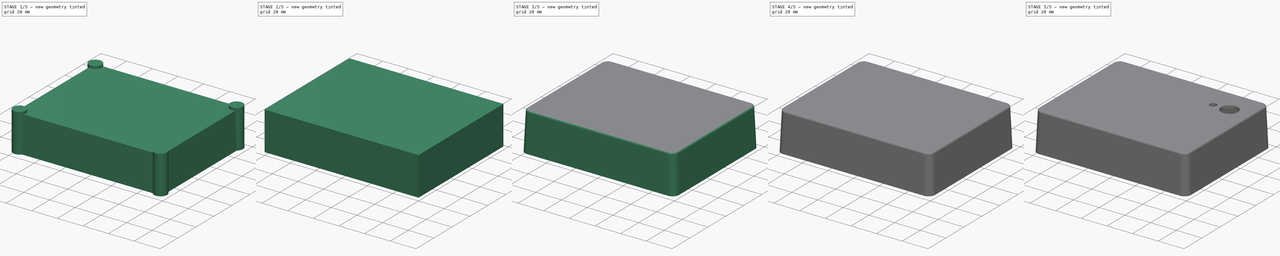
[diagram: build sequence overview — one tinted view per stage of 5, left to right]
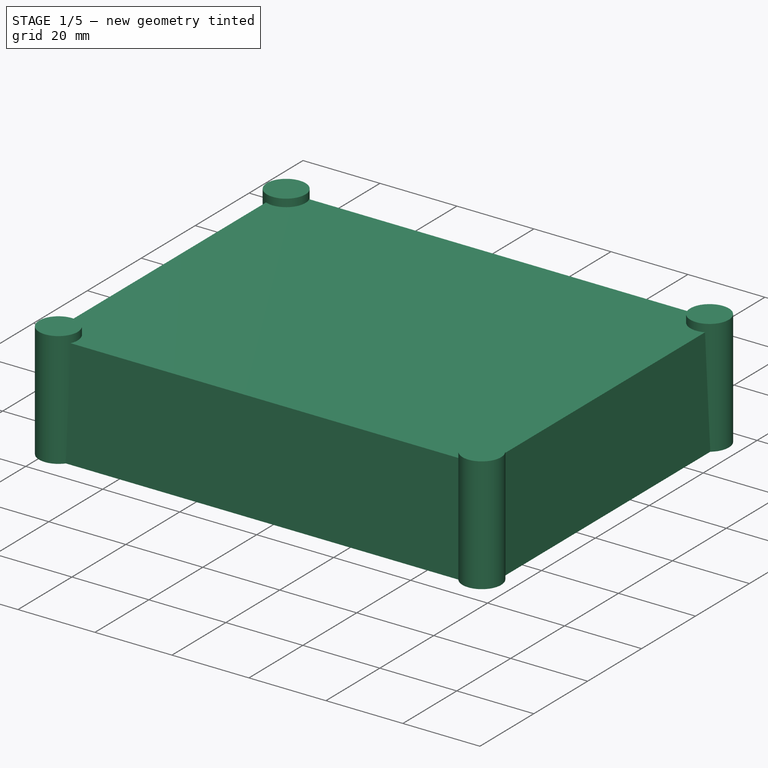
[diagram: stage 1 of 5 — iso view after this stage's code; geometry added in this stage tinted green]
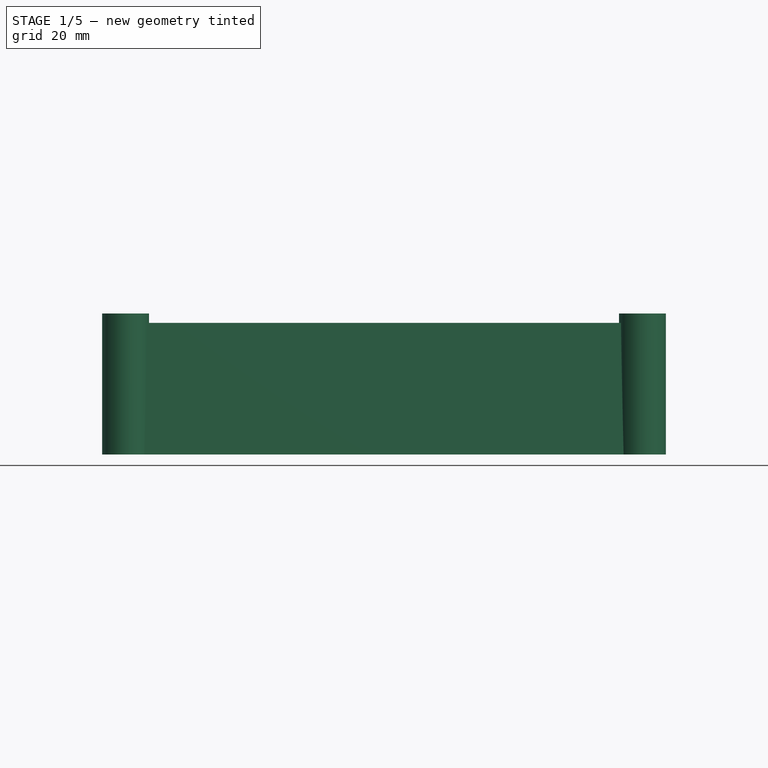
[diagram: stage 1 of 5 — front view after this stage's code; geometry added in this stage tinted green]
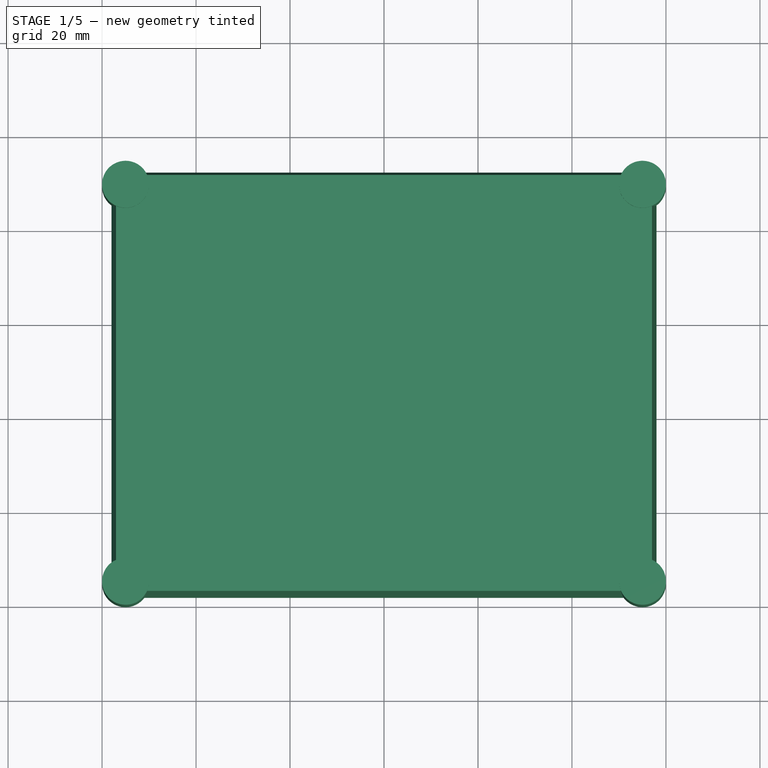
[diagram: stage 1 of 5 — top view after this stage's code; geometry added in this stage tinted green]
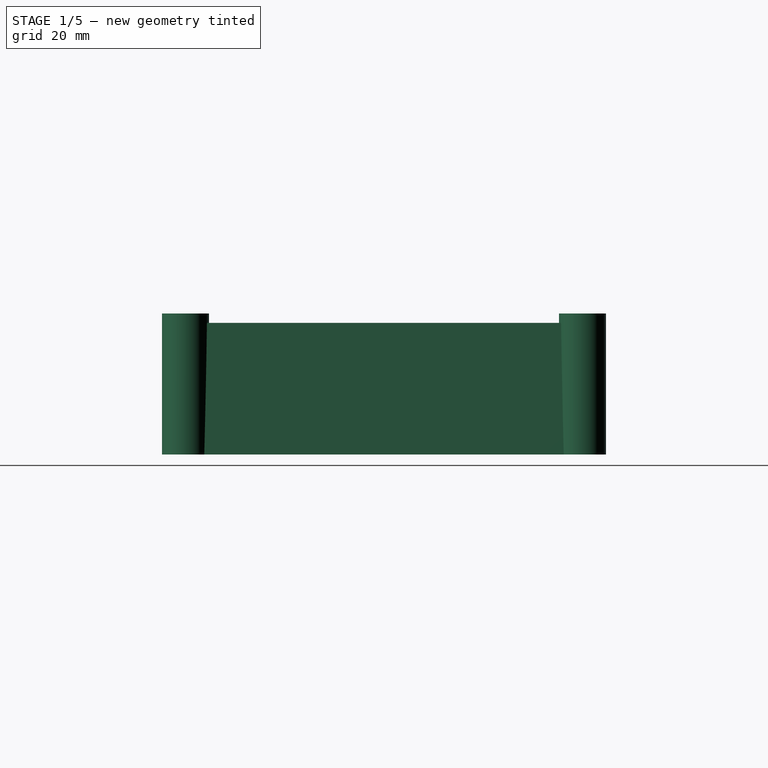
[diagram: stage 1 of 5 — right view after this stage's code; geometry added in this stage tinted green]
FCSTD DOCUMENT  (FreeCAD 0.15R4671 (Git))
Label: CaseWCutoutsModel
License: All rights reserved
LicenseURL: http://en.wikipedia.org/wiki/All_rights_reserved
objects: Sketcher::SketchObject×6, Part::Extrusion×6, Part::Cut×5, PartDesign::Fillet×4, PartDesign::Draft×2
note: 23 computed .brp shape members not serialized (recipe doc carries the construction recipe); baked Part::Feature solids carry a one-line shape summary decoded from their .brp

FEATURE [Part::Extrusion] Extrude001
  Base = -> Sketch005
  Dir = (0,0,28)
  Solid = true
FEATURE [PartDesign::Draft] Draft001
  Angle = 2
  Base = -> Extrude001 [Face1,Face4,Face3,Face2]
  NeutralPlane = -> Extrude001 [Face5]
FEATURE [Sketcher::SketchObject] Sketch007  label="screws"
  sketch-geometry (4):
    g0: Circle CenterX=5 CenterY=89.5 CenterZ=0 NormalX=0 NormalY=0 NormalZ=1 Radius=5
    g1: Circle CenterX=115 CenterY=89.5 CenterZ=0 NormalX=0 NormalY=0 NormalZ=1 Radius=5
    g2: Circle CenterX=5 CenterY=5 CenterZ=0 NormalX=0 NormalY=0 NormalZ=1 Radius=5
    g3: Circle CenterX=115 CenterY=5 CenterZ=0 NormalX=0 NormalY=0 NormalZ=1 Radius=5
  constraints (12):
    c: Radius(g0) = 5
    c: Radius(g1) = 5
    c: Radius(g2) = 5
    c: Radius(g3) = 5
    c: DistanceX(g-1,g2) = 5
    c: DistanceY(g-1,g2) = 5
    c: DistanceY(g-1,g0) = 89.5
    c: DistanceX(g-1,g0) = 5
    c: DistanceY(g-1,g1) = 89.5
    c: DistanceX(g-1,g3) = 115
    c: DistanceY(g-1,g3) = 5
    c: DistanceX(g-1,g1) = 115
FEATURE [Part::Extrusion] Extrude005  label="screwextrude"
  Base = -> Sketch007
  Dir = (0,0,30)
  Solid = true
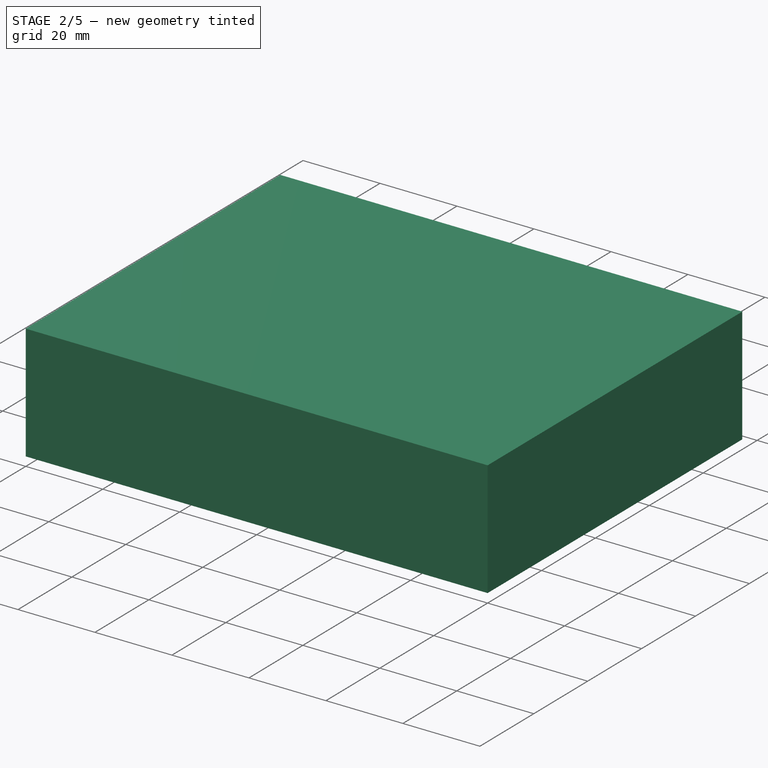
[diagram: stage 2 of 5 — iso view after this stage's code; geometry added in this stage tinted green]
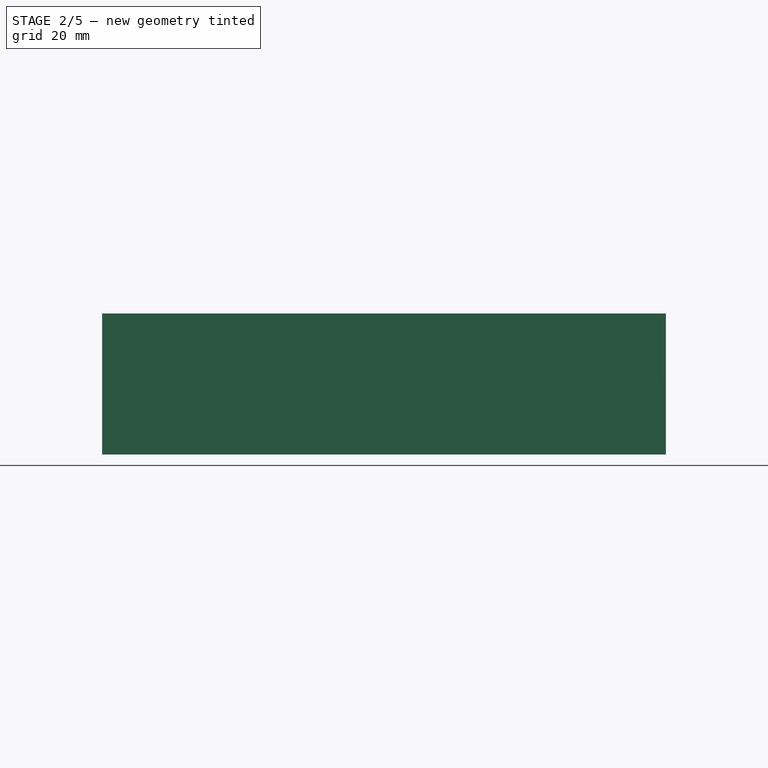
[diagram: stage 2 of 5 — front view after this stage's code; geometry added in this stage tinted green]
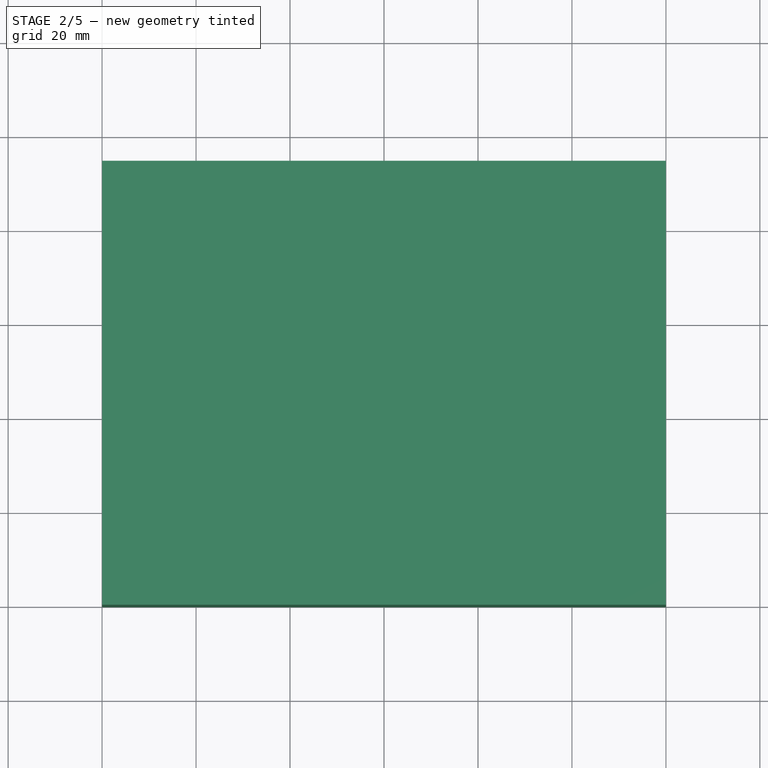
[diagram: stage 2 of 5 — top view after this stage's code; geometry added in this stage tinted green]
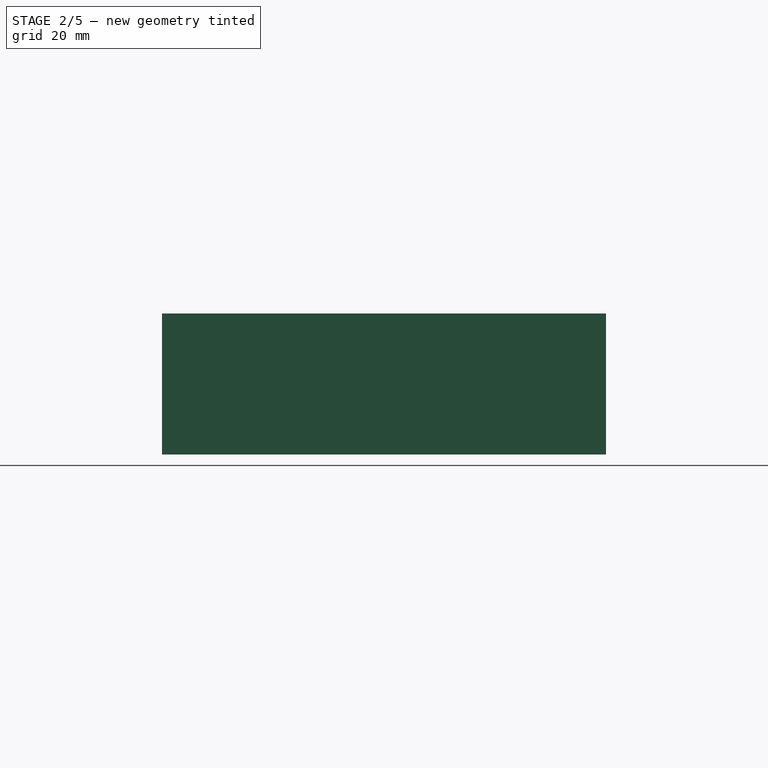
[diagram: stage 2 of 5 — right view after this stage's code; geometry added in this stage tinted green]
FEATURE [Sketcher::SketchObject] Sketch
  sketch-geometry (4):
    g0: LineSegment StartX=0 StartY=0 StartZ=0 EndX=120 EndY=0 EndZ=0
    g1: LineSegment StartX=120 StartY=0 StartZ=0 EndX=120 EndY=94.5 EndZ=0
    g2: LineSegment StartX=120 StartY=94.5 StartZ=0 EndX=0 EndY=94.5 EndZ=0
    g3: LineSegment StartX=0 StartY=94.5 StartZ=0 EndX=0 EndY=0 EndZ=0
  constraints (11):
    c: Coincident(g0,g1)
    c: Coincident(g1,g2)
    c: Coincident(g2,g3)
    c: Coincident(g3,g0)
    c: Horizontal(g0)
    c: Horizontal(g2)
    c: Vertical(g1)
    c: Vertical(g3)
    c: DistanceX(g0) = 120
    c: Coincident(g0,g-1)
    c: DistanceY(g3) = -94.5
FEATURE [Sketcher::SketchObject] Sketch002  label="end_nobox"
  Placement = pos=(0,47.25,0) rot=(0.57735,-0.57735,-0.57735;2.0944rad)
  sketch-geometry (4):
    g0: Circle CenterX=26.035 CenterY=12 CenterZ=0 NormalX=0 NormalY=0 NormalZ=1 Radius=6
    g1: Circle CenterX=-26.035 CenterY=12 CenterZ=0 NormalX=0 NormalY=0 NormalZ=1 Radius=6
    g2: Circle CenterX=-9.525 CenterY=11.25 CenterZ=0 NormalX=0 NormalY=0 NormalZ=1 Radius=5
    g3: Circle CenterX=0 CenterY=20 CenterZ=0 NormalX=0 NormalY=0 NormalZ=1 Radius=1.65
  constraints (12):
    c: DistanceX(g-1,g0) = 26.035
    c: Radius(g0) = 6
    c: DistanceX(g-1,g1) = -26.035
    c: Radius(g2) = 5
    c: DistanceX(g-1,g2) = -9.525
    c: DistanceY(g-1,g0) = 12
    c: DistanceY(g-1,g2) = 11.25
    c: DistanceY(g-1,g1) = 12
    c: Radius(g1) = 6
    c: Radius(g3) = 1.65
    c: DistanceX(g-1,g3) = 0
    c: DistanceY(g-1,g3) = 20
FEATURE [Sketcher::SketchObject] Sketch004  label="top_nobox"
  Placement = pos=(60,47.25,30) rot=(0,0,1;1.5708rad)
  sketch-geometry (2):
    g0: Circle CenterX=24.765 CenterY=-43.053 CenterZ=0 NormalX=0 NormalY=0 NormalZ=1 Radius=6.5
    g1: Circle CenterX=24.765 CenterY=-30.353 CenterZ=0 NormalX=0 NormalY=0 NormalZ=1 Radius=2.625
  constraints (6):
    c: DistanceX(g-1,g0) = 24.765
    c: Radius(g0) = 6.5
    c: Radius(g1) = 2.625
    c: DistanceX(g-1,g1) = 24.765
    c: DistanceY(g-1,g1) = -30.353
    c: DistanceY(g-1,g0) = -43.053
FEATURE [Sketcher::SketchObject] Sketch005
  sketch-geometry (4):
    g0: LineSegment StartX=2 StartY=92.5 StartZ=0 EndX=118 EndY=92.5 EndZ=0
    g1: LineSegment StartX=118 StartY=92.5 StartZ=0 EndX=118 EndY=2 EndZ=0
    g2: LineSegment StartX=118 StartY=2 StartZ=0 EndX=2 EndY=2 EndZ=0
    g3: LineSegment StartX=2 StartY=2 StartZ=0 EndX=2 EndY=92.5 EndZ=0
  constraints (12):
    c: Coincident(g0,g1)
    c: Coincident(g1,g2)
    c: Coincident(g2,g3)
    c: Coincident(g3,g0)
    c: Horizontal(g0)
    c: Horizontal(g2)
    c: Vertical(g1)
    c: Vertical(g3)
    c: DistanceX(g0) = 116
    c: DistanceY(g3) = 90.5
    c: DistanceY(g-1,g2) = 2
    c: DistanceX(g-1,g2) = 2
FEATURE [Part::Extrusion] Extrude
  Base = -> Sketch
  Dir = (0,0,30)
  Solid = true
FEATURE [PartDesign::Fillet] Fillet002
  Base = -> Draft001 [Edge8,Edge5,Edge2,Edge1]
  Radius = 5
FEATURE [PartDesign::Fillet] Fillet003  label="InnerShell"
  Base = -> Fillet002 [Edge13,Edge4,Edge16,Edge18,Edge20,Edge19,Edge17,Edge15]
  Radius = 1.5
FEATURE [Part::Cut] Cut  label="inner"
  Base = -> Fillet003
  Tool = -> Extrude005
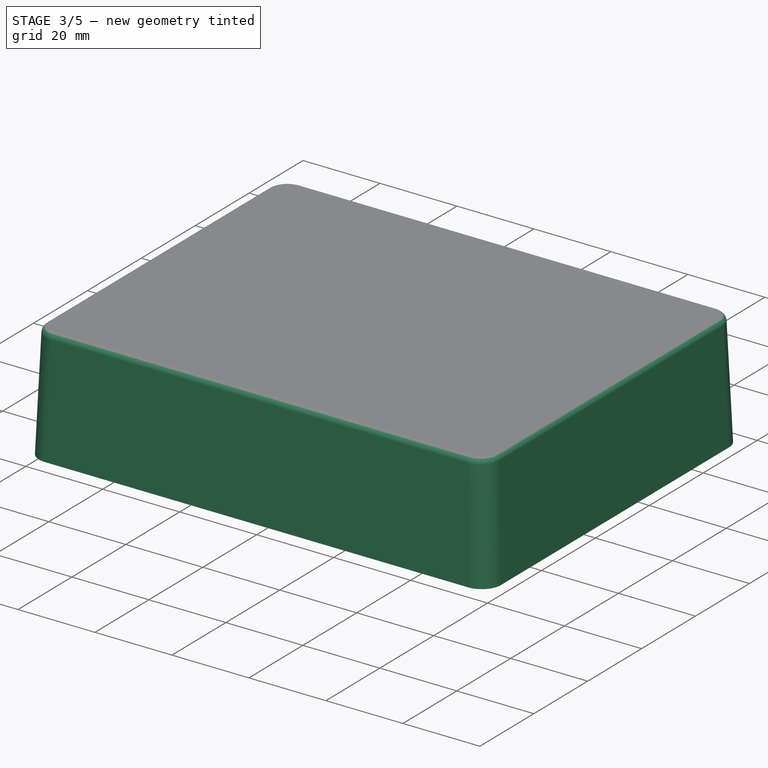
[diagram: stage 3 of 5 — iso view after this stage's code; geometry added in this stage tinted green]
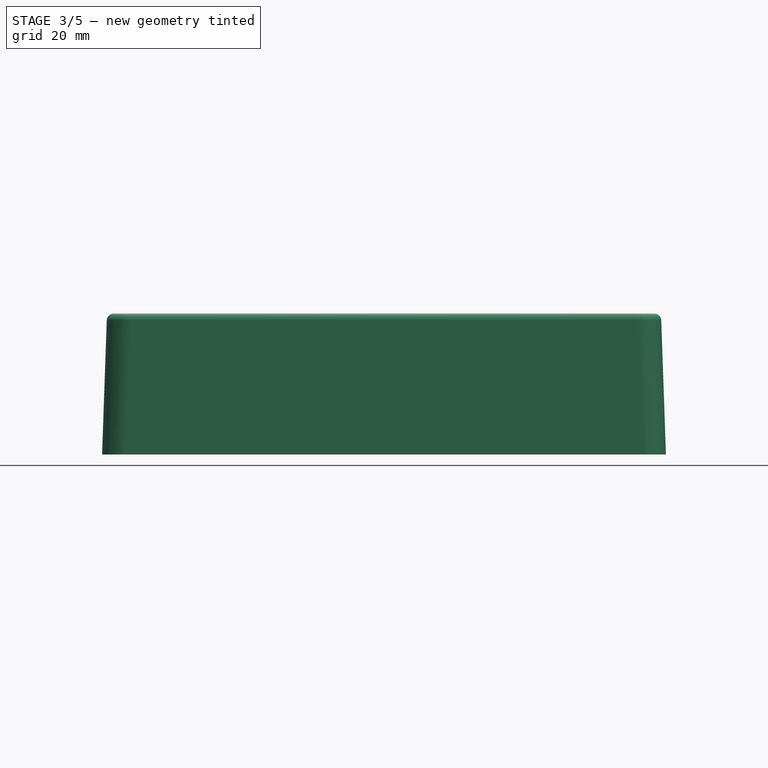
[diagram: stage 3 of 5 — front view after this stage's code; geometry added in this stage tinted green]
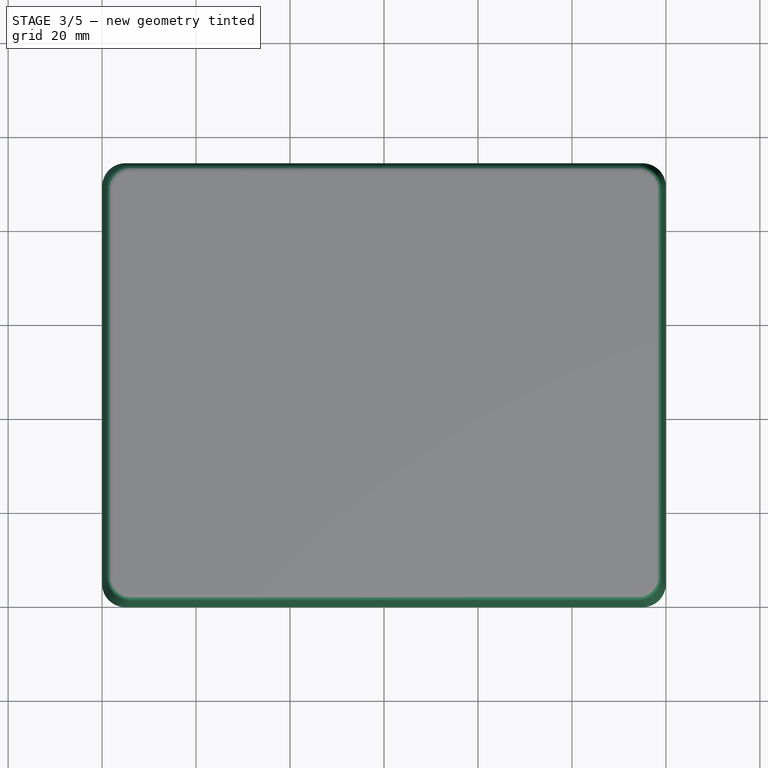
[diagram: stage 3 of 5 — top view after this stage's code; geometry added in this stage tinted green]
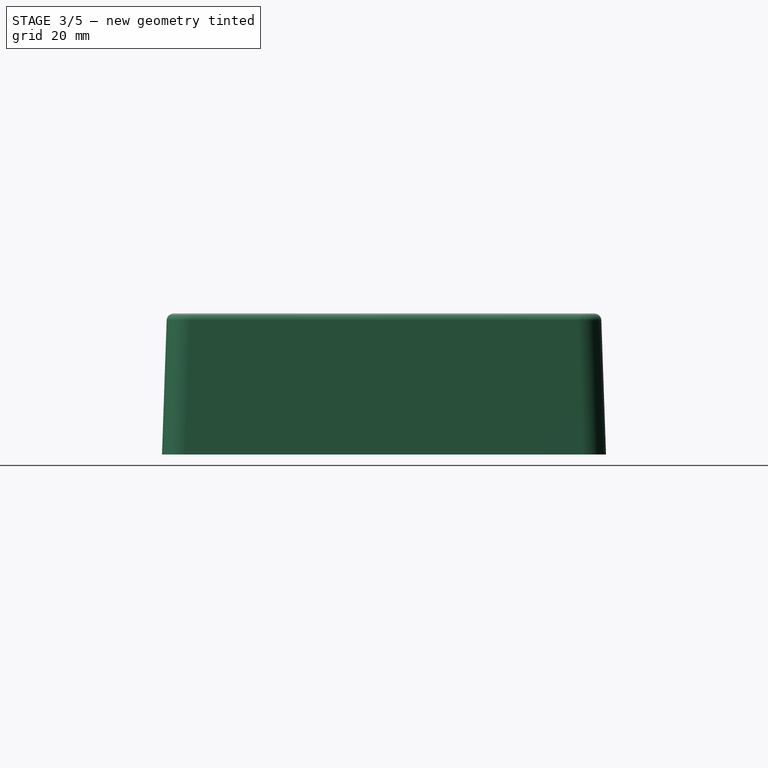
[diagram: stage 3 of 5 — right view after this stage's code; geometry added in this stage tinted green]
FEATURE [PartDesign::Draft] Draft
  Angle = 2
  Base = -> Extrude [Face2,Face3,Face1,Face4]
  NeutralPlane = -> Extrude [Face5]
  Reversed = true
FEATURE [PartDesign::Fillet] Fillet
  Base = -> Draft [Edge1,Edge2,Edge5,Edge8]
  Radius = 5
FEATURE [PartDesign::Fillet] Fillet001  label="OuterShell"
  Base = -> Fillet [Edge18,Edge20,Edge16,Edge13,Edge4,Edge15,Edge17,Edge19]
  Radius = 1.5
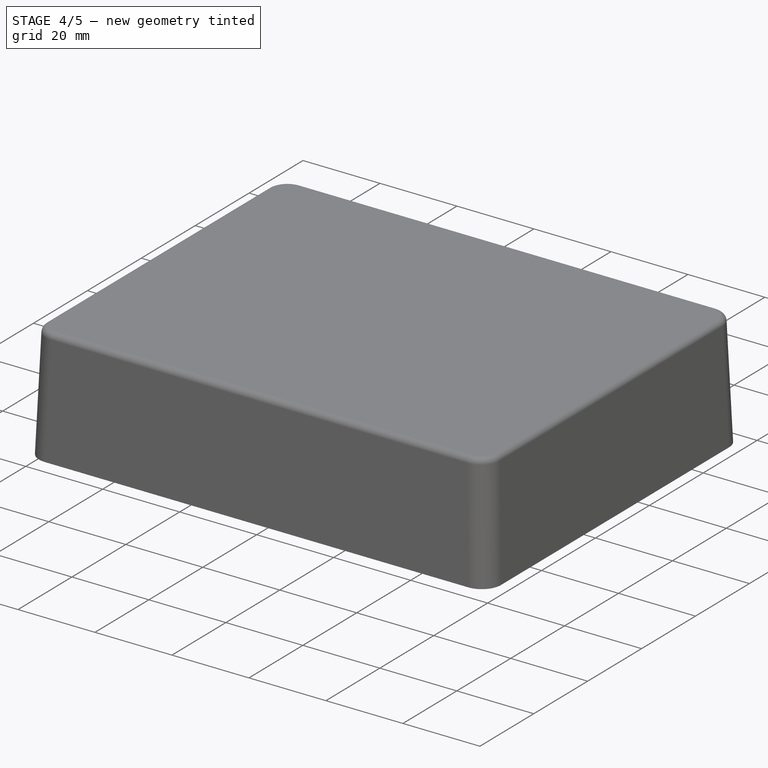
[diagram: stage 4 of 5 — iso view after this stage's code; geometry added in this stage tinted green]
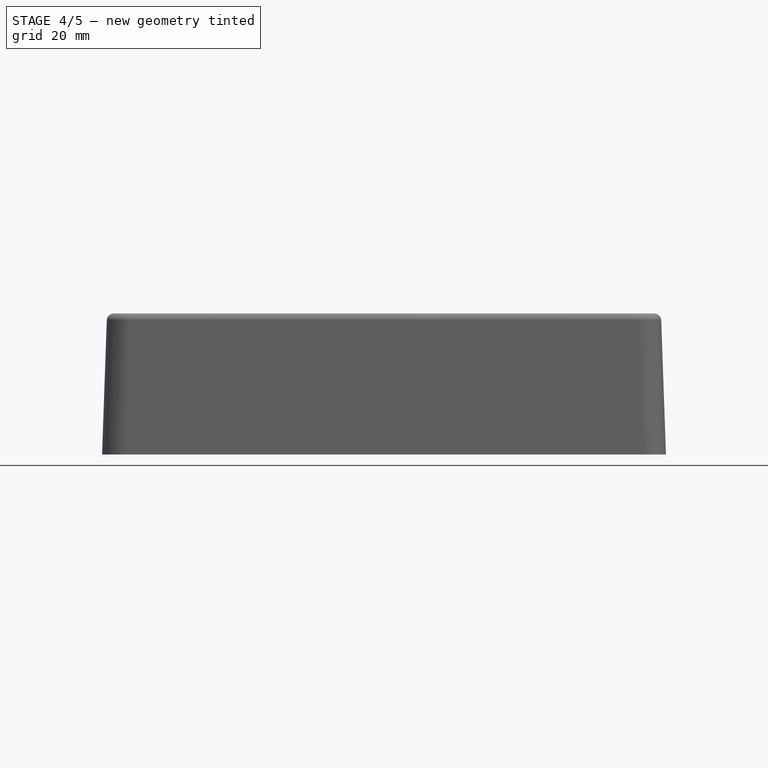
[diagram: stage 4 of 5 — front view after this stage's code; geometry added in this stage tinted green]
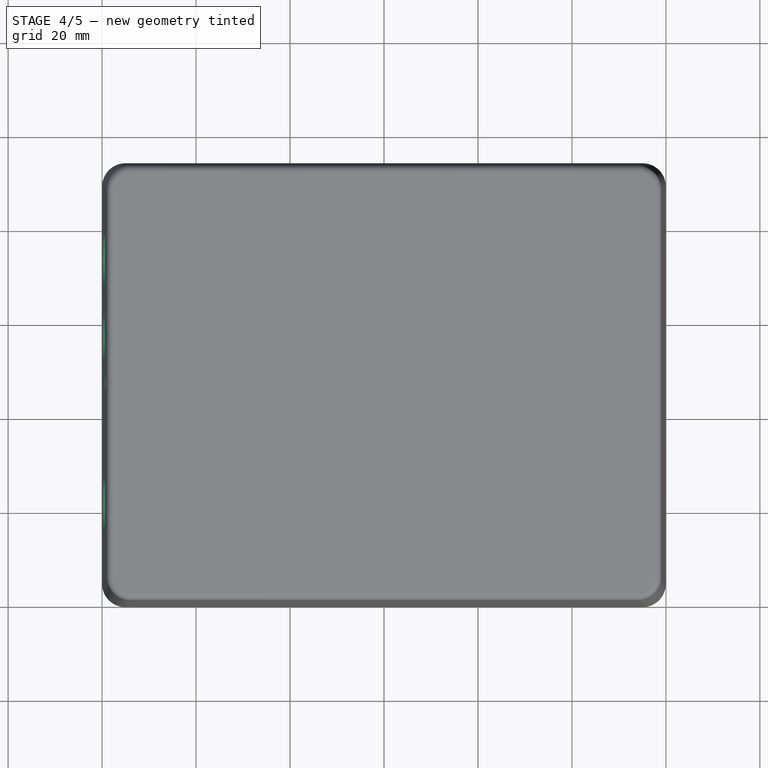
[diagram: stage 4 of 5 — top view after this stage's code; geometry added in this stage tinted green]
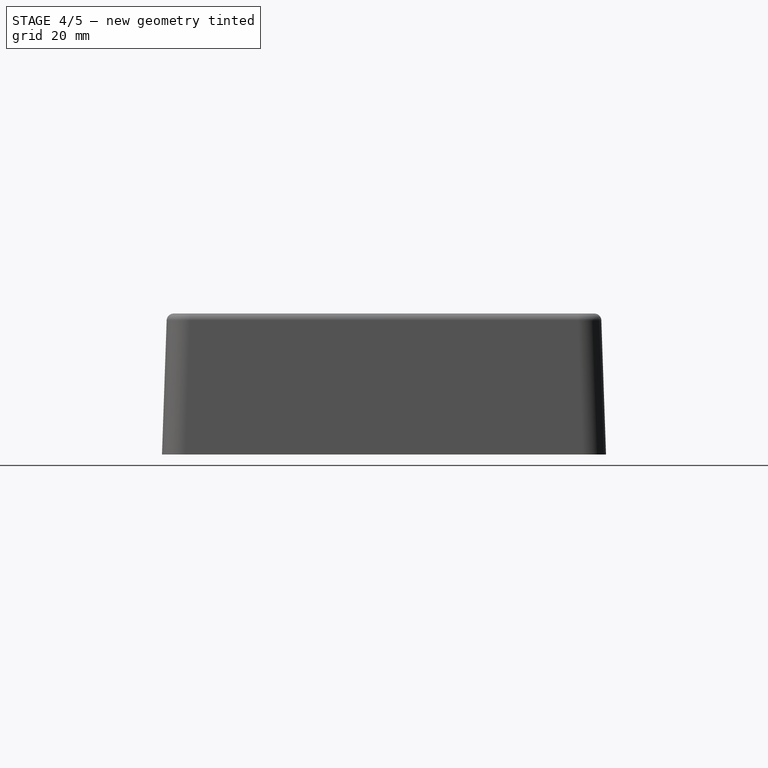
[diagram: stage 4 of 5 — right view after this stage's code; geometry added in this stage tinted green]
FEATURE [Part::Extrusion] Extrude002  label="ExtrudeTop"
  Base = -> Sketch004
  Dir = (0,0,-10)
  Solid = true
FEATURE [Part::Extrusion] Extrude003  label="ExtrudeEnd"
  Base = -> Sketch002
  Dir = (10,0,0)
  Solid = true
FEATURE [Part::Cut] Cut001
  Base = -> Fillet001
  Tool = -> Cut
FEATURE [Part::Cut] Cut002
  Base = -> Cut001
  Tool = -> Extrude003
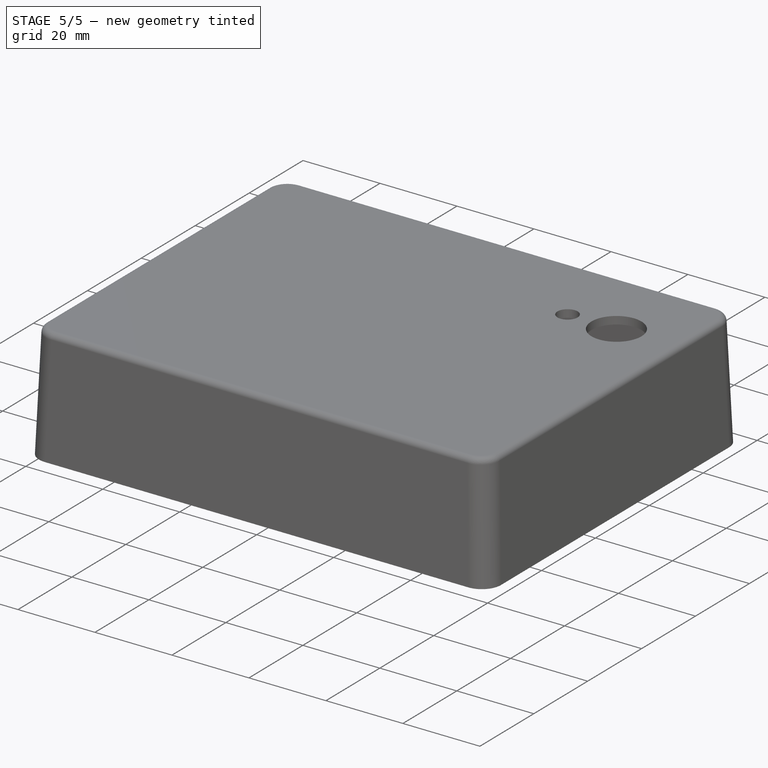
[diagram: stage 5 of 5 — iso view after this stage's code; geometry added in this stage tinted green]
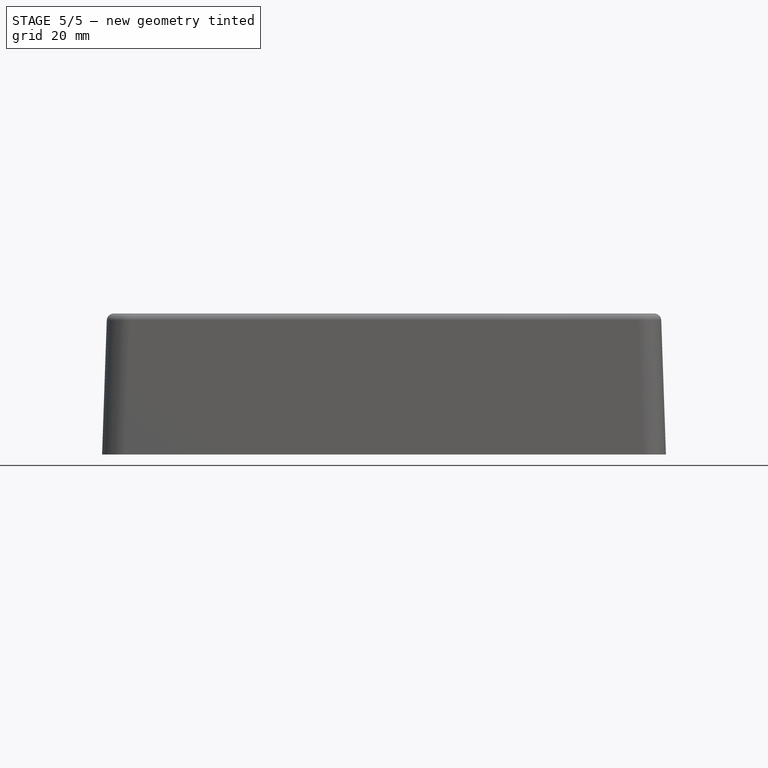
[diagram: stage 5 of 5 — front view after this stage's code; geometry added in this stage tinted green]
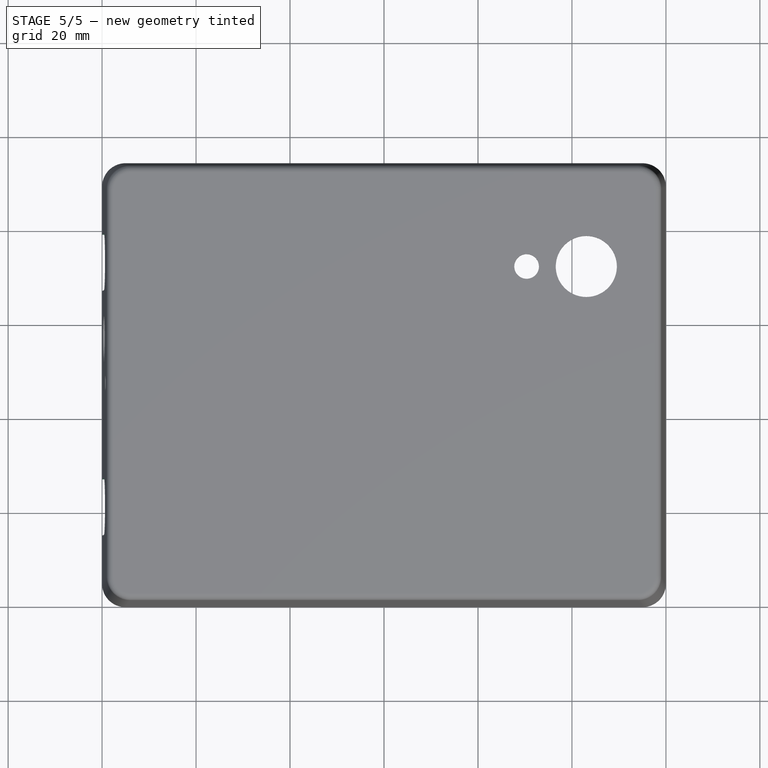
[diagram: stage 5 of 5 — top view after this stage's code; geometry added in this stage tinted green]
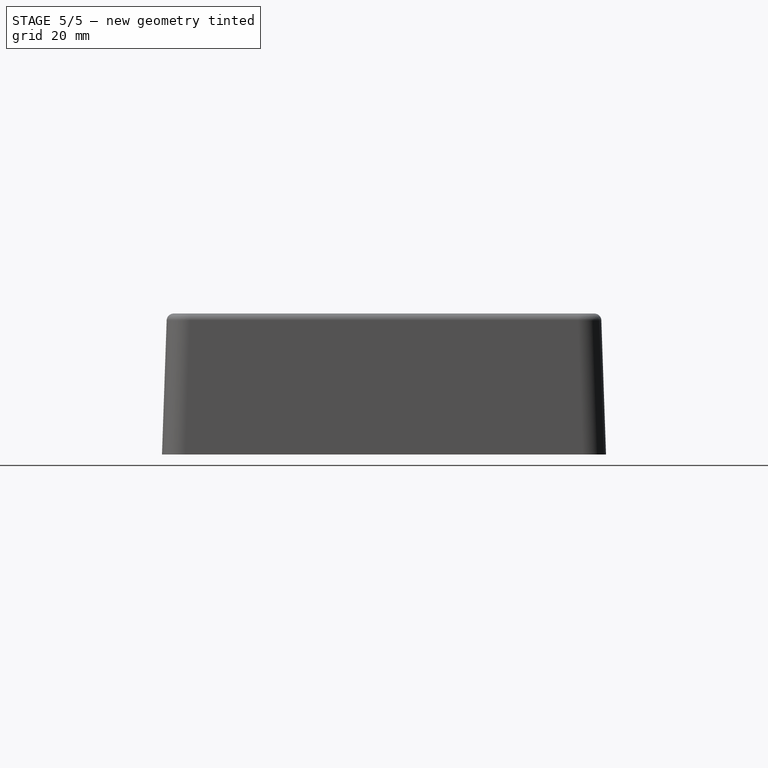
[diagram: stage 5 of 5 — right view after this stage's code; geometry added in this stage tinted green]
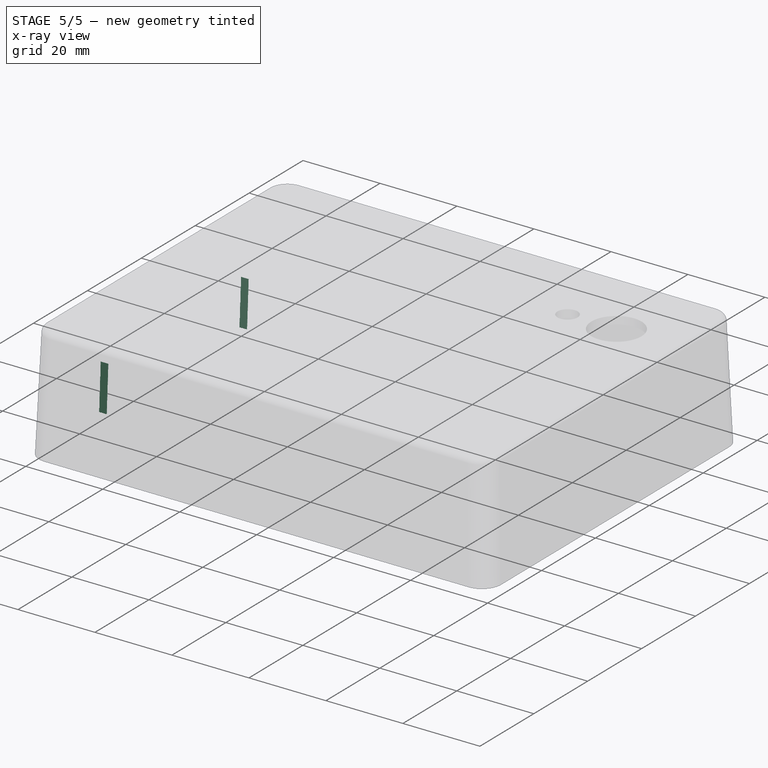
[diagram: stage 5 of 5 — x-ray composite at the iso view; earlier geometry ghosted, this stage's added geometry solid]
FEATURE [Sketcher::SketchObject] Sketch006  label="endmousedoors"
  Placement = pos=(0,47.25,0) rot=(0.57735,-0.57735,-0.57735;2.0944rad)
  sketch-geometry (8):
    g0: LineSegment StartX=20.035 StartY=0 StartZ=0 EndX=32.035 EndY=0 EndZ=0
    g1: LineSegment StartX=32.035 StartY=0 StartZ=0 EndX=32.035 EndY=12 EndZ=0
    g2: LineSegment StartX=32.035 StartY=12 StartZ=0 EndX=20.035 EndY=12 EndZ=0
    g3: LineSegment StartX=20.035 StartY=12 StartZ=0 EndX=20.035 EndY=0 EndZ=0
    g4: LineSegment StartX=-32.035 StartY=12 StartZ=0 EndX=-20.035 EndY=12 EndZ=0
    g5: LineSegment StartX=-20.035 StartY=12 StartZ=0 EndX=-20.035 EndY=0 EndZ=0
    g6: LineSegment StartX=-20.035 StartY=0 StartZ=0 EndX=-32.035 EndY=0 EndZ=0
    g7: LineSegment StartX=-32.035 StartY=0 StartZ=0 EndX=-32.035 EndY=12 EndZ=0
  constraints (24):
    c: Coincident(g0,g1)
    c: Coincident(g1,g2)
    c: Coincident(g2,g3)
    c: Coincident(g3,g0)
    c: Horizontal(g0)
    c: Horizontal(g2)
    c: Vertical(g1)
    c: Vertical(g3)
    c: DistanceX(g2) = -12
    c: DistanceY(g-1,g2) = 12
    c: DistanceY(g-1,g0) = 0
    c: DistanceX(g-1,g0) = 20.035
    c: Coincident(g4,g5)
    c: Coincident(g5,g6)
    c: Coincident(g6,g7)
    c: Coincident(g7,g4)
    c: Horizontal(g4)
    c: Horizontal(g6)
    c: Vertical(g5)
    c: Vertical(g7)
    c: DistanceX(g4) = 12
    c: DistanceY(g-1,g5) = 0
    c: DistanceY(g-1,g4) = 12
    c: DistanceX(g-1,g5) = -20.035
FEATURE [Part::Extrusion] Extrude004  label="mouseblocks"
  Base = -> Sketch006
  Dir = (10,0,0)
  Solid = true
FEATURE [Part::Cut] Cut003
  Base = -> Cut002
  Tool = -> Extrude002
FEATURE [Part::Cut] Cut004  label="TopLevelPart"
  Base = -> Cut003
  Tool = -> Extrude004
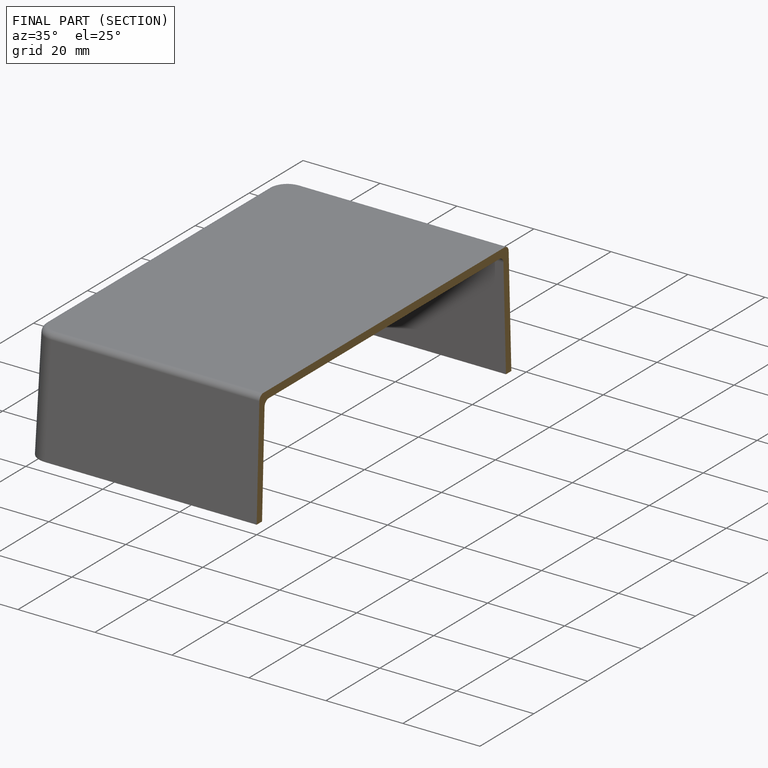
[diagram: finished part — half-section view (interior)]
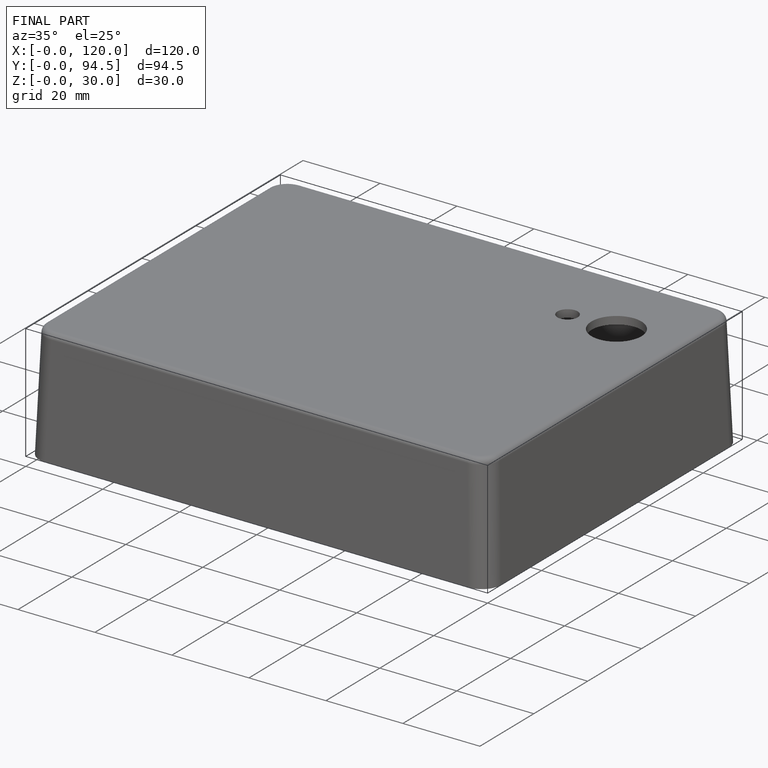
[diagram: finished part — iso view with bounding-box wireframe]
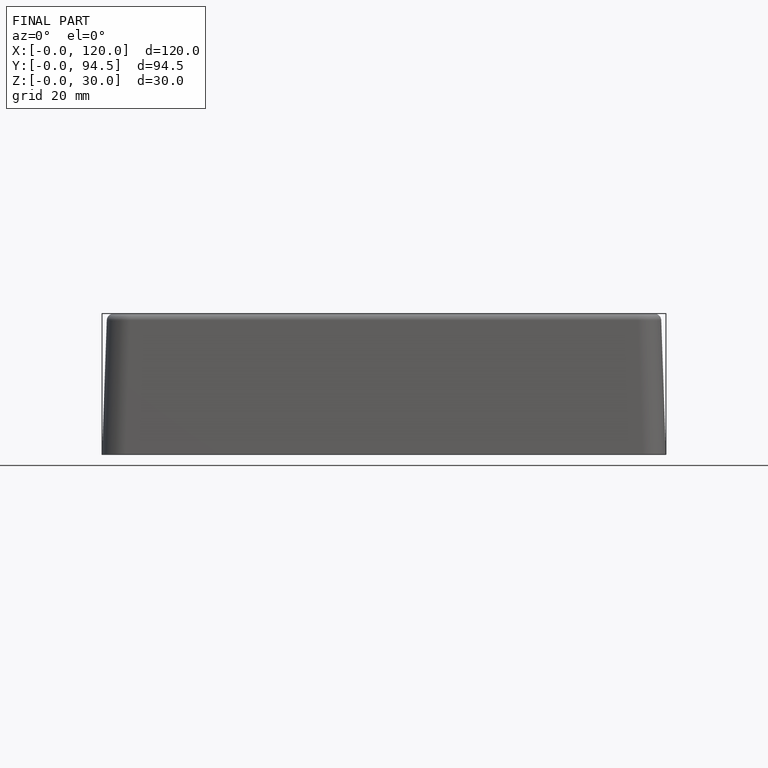
[diagram: finished part — front view with bounding-box wireframe]
